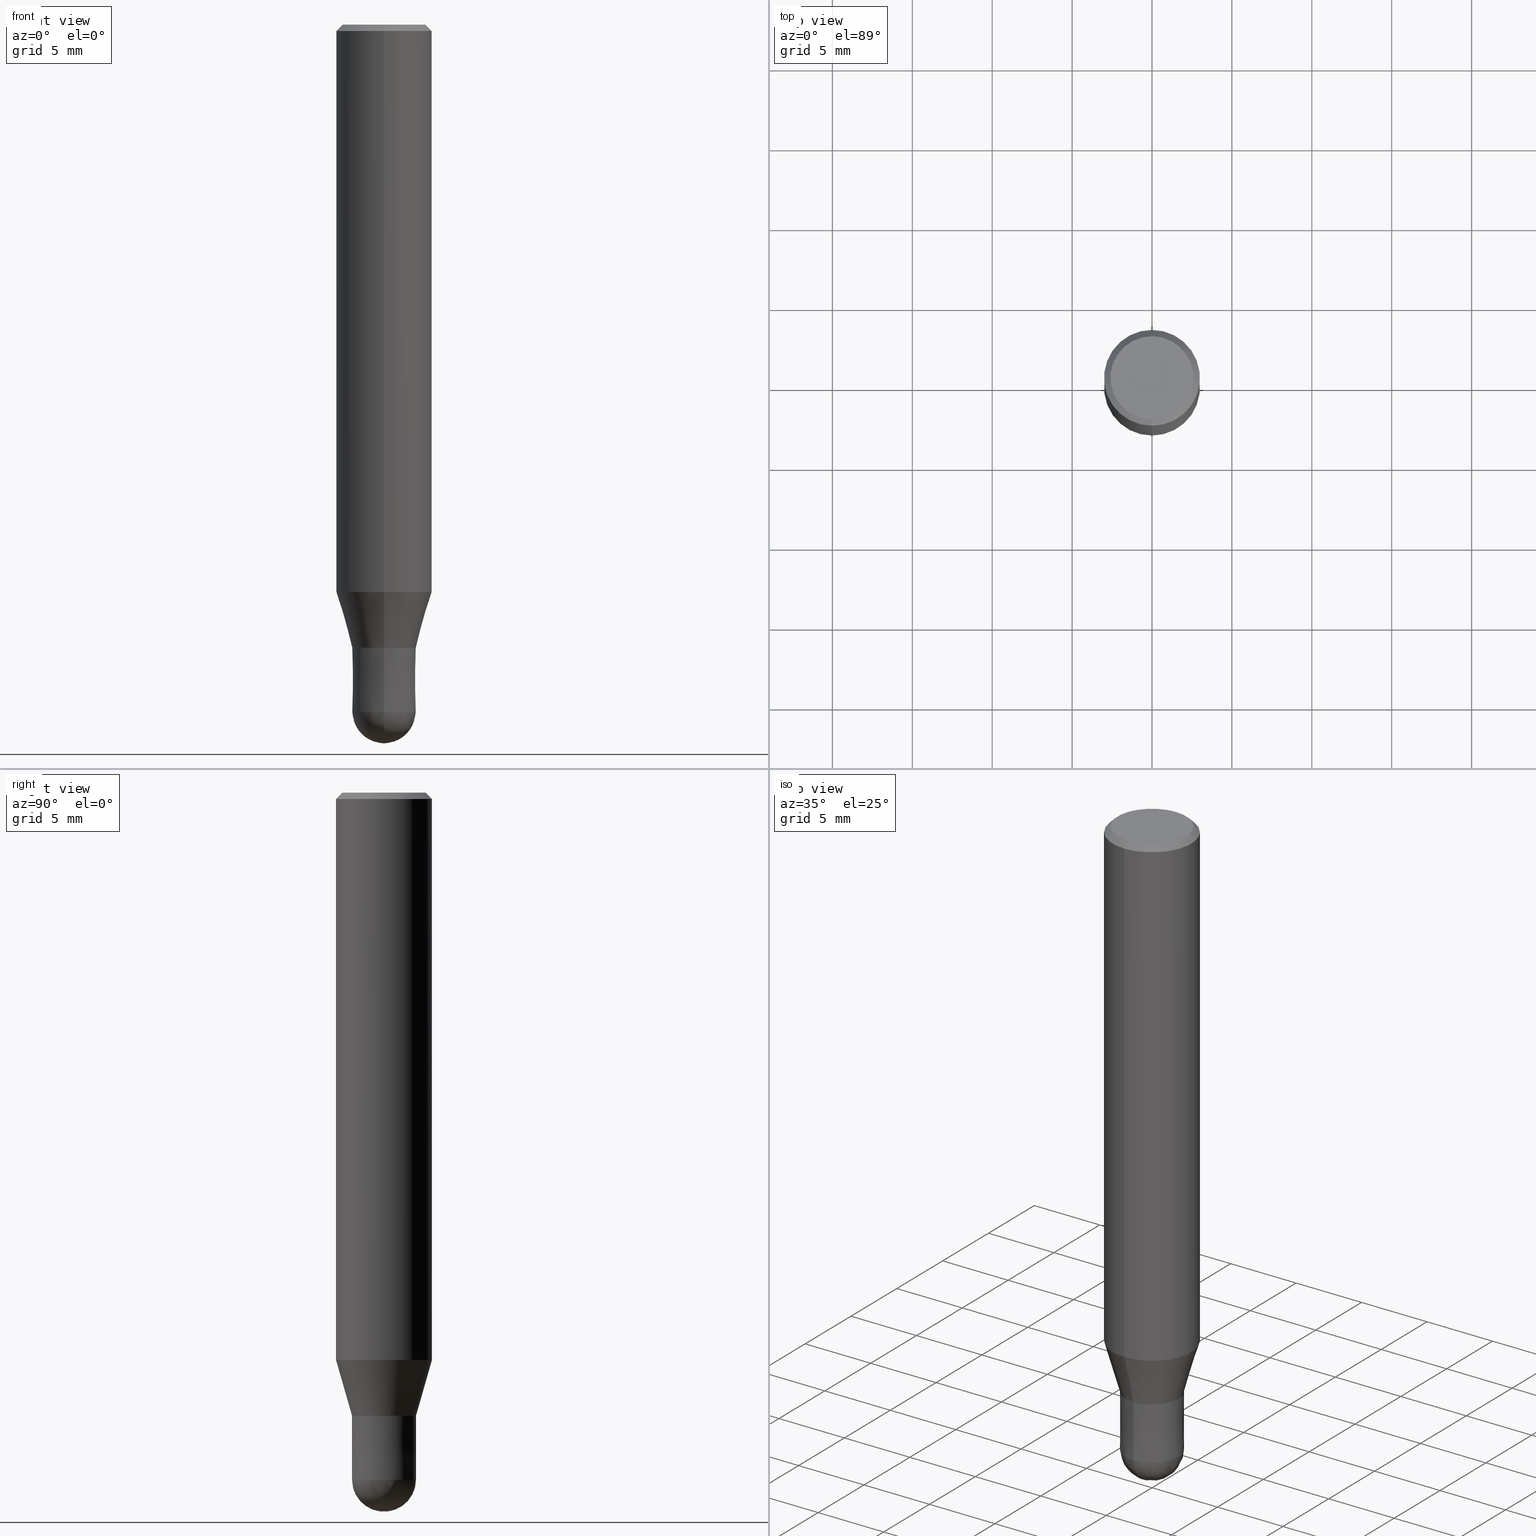
[diagram: canonical four-view strip — front | top / right | iso, engineering-drawing reading convention]
A machine part, canonical four-view strip (front | top / right | iso — engineering-drawing reading convention). The complete STEP part file that produces these views, byte-faithful:
ISO-10303-21;
HEADER;
FILE_DESCRIPTION(('no description'),'unknown implementation level');
FILE_NAME('HFB4040-0600S-Huellk.stp','  ',('CIMSOURCE GmbH'),('CADClick - KiM GmbH - www.kimweb.de'),'unknown preprocess','ACIS','unknown authorization');
FILE_SCHEMA(('automotive_design'));
ENDSEC;
DATA;
#1=MECHANICAL_DESIGN_GEOMETRIC_PRESENTATION_REPRESENTATION(' ',(#14,#15,#16,#17,#18,#19,#20,#21,#22,#23,#24,#25,#26,#27,#28,#29,#30,#31,#32,#33,#34,#35,#36,#37,#38,#39,#40,#41,#42,#43,#44,#45,#46,#47,#48,#49,#50,#51,#52,#53,#54,#55,#56,#57,#58,#59,#60,#61,#62,#63,#64,#65,#66),#10);
#2=PRODUCT_DEFINITION_CONTEXT('',#67,'design');
#3=APPLICATION_PROTOCOL_DEFINITION('INTERNATIONAL STANDARD','automotive_design',1994,#67);
#4=PRODUCT_CATEGORY_RELATIONSHIP('NONE','NONE',#68,#69);
#5=SHAPE_DEFINITION_REPRESENTATION(#70,#71);
#6=PRODUCT_DEFINITION_CONTEXT('',#72,'design');
#7=APPLICATION_PROTOCOL_DEFINITION('INTERNATIONAL STANDARD','automotive_design',1994,#72);
#8=PRODUCT_CATEGORY_RELATIONSHIP('NONE','NONE',#73,#74);
#9=SHAPE_DEFINITION_REPRESENTATION(#75,#76);
#10= (GEOMETRIC_REPRESENTATION_CONTEXT(3)GLOBAL_UNCERTAINTY_ASSIGNED_CONTEXT((#79))GLOBAL_UNIT_ASSIGNED_CONTEXT((#81,#82,#83))REPRESENTATION_CONTEXT('NONE','WORKSPACE'));
#14=STYLED_ITEM('',(#85),#86);
#15=STYLED_ITEM('',(#87),#88);
#16=STYLED_ITEM('',(#89),#90);
#17=STYLED_ITEM('',(#91),#92);
#18=STYLED_ITEM('',(#93),#94);
#19=STYLED_ITEM('',(#95),#96);
#20=STYLED_ITEM('',(#97),#98);
#21=STYLED_ITEM('',(#99),#100);
#22=STYLED_ITEM('',(#101),#102);
#23=STYLED_ITEM('',(#103),#104);
#24=STYLED_ITEM('',(#105),#106);
#25=STYLED_ITEM('',(#107),#108);
#26=STYLED_ITEM('',(#109),#110);
#27=STYLED_ITEM('',(#111),#112);
#28=STYLED_ITEM('',(#113),#114);
#29=STYLED_ITEM('',(#115),#116);
#30=STYLED_ITEM('',(#117),#118);
#31=STYLED_ITEM('',(#119),#120);
#32=STYLED_ITEM('',(#121),#122);
#33=STYLED_ITEM('',(#123),#124);
#34=STYLED_ITEM('',(#125),#126);
#35=STYLED_ITEM('',(#127),#128);
#36=STYLED_ITEM('',(#129),#130);
#37=STYLED_ITEM('',(#131),#132);
#38=STYLED_ITEM('',(#133),#134);
#39=STYLED_ITEM('',(#135),#136);
#40=STYLED_ITEM('',(#137),#138);
#41=STYLED_ITEM('',(#139),#140);
#42=STYLED_ITEM('',(#141),#142);
#43=STYLED_ITEM('',(#143),#144);
#44=STYLED_ITEM('',(#145),#146);
#45=STYLED_ITEM('',(#147),#148);
#46=STYLED_ITEM('',(#149),#150);
#47=STYLED_ITEM('',(#151),#152);
#48=STYLED_ITEM('',(#153),#154);
#49=STYLED_ITEM('',(#155),#156);
#50=STYLED_ITEM('',(#157),#158);
#51=STYLED_ITEM('',(#159),#160);
#52=STYLED_ITEM('',(#161),#162);
#53=STYLED_ITEM('',(#163),#164);
#54=STYLED_ITEM('',(#165),#166);
#55=STYLED_ITEM('',(#167),#168);
#56=STYLED_ITEM('',(#169),#170);
#57=STYLED_ITEM('',(#171),#172);
#58=STYLED_ITEM('',(#173),#174);
#59=STYLED_ITEM('',(#175),#176);
#60=STYLED_ITEM('',(#177),#178);
#61=STYLED_ITEM('',(#179),#180);
#62=STYLED_ITEM('',(#181),#182);
#63=STYLED_ITEM('',(#183),#184);
#64=STYLED_ITEM('',(#185),#186);
#65=STYLED_ITEM('',(#187),#188);
#66=STYLED_ITEM('',(#189),#190);
#67=APPLICATION_CONTEXT(' ');
#68=PRODUCT_CATEGORY('part','NONE');
#69=PRODUCT_RELATED_PRODUCT_CATEGORY('detail',' ',(#191));
#70=PRODUCT_DEFINITION_SHAPE('NONE','NONE',#192);
#71=ADVANCED_BREP_SHAPE_REPRESENTATION('1',(#98,#193),#10);
#72=APPLICATION_CONTEXT(' ');
#73=PRODUCT_CATEGORY('part','NONE');
#74=PRODUCT_RELATED_PRODUCT_CATEGORY('detail',' ',(#194));
#75=PRODUCT_DEFINITION_SHAPE('NONE','NONE',#195);
#76=ADVANCED_BREP_SHAPE_REPRESENTATION('2',(#188,#196),#10);
#79=UNCERTAINTY_MEASURE_WITH_UNIT(LENGTH_MEASURE(1.0E-006),#81,'','');
#81= (CONVERSION_BASED_UNIT('MILLIMETRE',#199)LENGTH_UNIT()NAMED_UNIT(#202));
#82= (NAMED_UNIT(#204)PLANE_ANGLE_UNIT()SI_UNIT($,.RADIAN.));
#83= (NAMED_UNIT(#204)SOLID_ANGLE_UNIT()SI_UNIT($,.STERADIAN.));
#85=PRESENTATION_STYLE_ASSIGNMENT((#210));
#86=ADVANCED_FACE('',(#211),#212,.T.);
#87=PRESENTATION_STYLE_ASSIGNMENT((#213));
#88=EDGE_CURVE('',#180,#102,#214,.T.);
#89=PRESENTATION_STYLE_ASSIGNMENT((#215));
#90=EDGE_CURVE('',#142,#154,#216,.T.);
#91=PRESENTATION_STYLE_ASSIGNMENT((#217));
#92=ADVANCED_FACE('',(#218),#219,.T.);
#93=PRESENTATION_STYLE_ASSIGNMENT((#220));
#94=EDGE_CURVE('',#142,#162,#221,.T.);
#95=PRESENTATION_STYLE_ASSIGNMENT((#222));
#96=ADVANCED_FACE('',(#223),#224,.T.);
#97=PRESENTATION_STYLE_ASSIGNMENT((#225));
#98=MANIFOLD_SOLID_BREP('1',#226);
#99=PRESENTATION_STYLE_ASSIGNMENT((#227));
#100=VERTEX_POINT('',#228);
#101=PRESENTATION_STYLE_ASSIGNMENT((#229));
#102=VERTEX_POINT('',#230);
#103=PRESENTATION_STYLE_ASSIGNMENT((#231));
#104=ADVANCED_FACE('',(#232),#233,.T.);
#105=PRESENTATION_STYLE_ASSIGNMENT((#234));
#106=EDGE_CURVE('',#156,#174,#235,.T.);
#107=PRESENTATION_STYLE_ASSIGNMENT((#236));
#108=EDGE_CURVE('',#126,#162,#237,.T.);
#109=PRESENTATION_STYLE_ASSIGNMENT((#238));
#110=EDGE_CURVE('',#100,#156,#239,.T.);
#111=PRESENTATION_STYLE_ASSIGNMENT((#240));
#112=ADVANCED_FACE('',(#241),#242,.T.);
#113=PRESENTATION_STYLE_ASSIGNMENT((#243));
#114=EDGE_CURVE('',#158,#170,#244,.T.);
#115=PRESENTATION_STYLE_ASSIGNMENT((#245));
#116=EDGE_CURVE('',#158,#170,#246,.T.);
#117=PRESENTATION_STYLE_ASSIGNMENT((#247));
#118=EDGE_CURVE('',#168,#100,#248,.T.);
#119=PRESENTATION_STYLE_ASSIGNMENT((#249));
#120=EDGE_CURVE('',#160,#182,#250,.T.);
#121=PRESENTATION_STYLE_ASSIGNMENT((#251));
#122=EDGE_CURVE('',#180,#168,#252,.T.);
#123=PRESENTATION_STYLE_ASSIGNMENT((#253));
#124=EDGE_CURVE('',#182,#160,#254,.T.);
#125=PRESENTATION_STYLE_ASSIGNMENT((#255));
#126=VERTEX_POINT('',#256);
#127=PRESENTATION_STYLE_ASSIGNMENT((#257));
#128=EDGE_CURVE('',#160,#170,#258,.T.);
#129=PRESENTATION_STYLE_ASSIGNMENT((#259));
#130=EDGE_CURVE('',#162,#126,#260,.T.);
#131=PRESENTATION_STYLE_ASSIGNMENT((#261));
#132=EDGE_CURVE('',#174,#168,#262,.T.);
#133=PRESENTATION_STYLE_ASSIGNMENT((#263));
#134=ADVANCED_FACE('',(#264),#265,.T.);
#135=PRESENTATION_STYLE_ASSIGNMENT((#266));
#136=EDGE_CURVE('',#102,#180,#267,.T.);
#137=PRESENTATION_STYLE_ASSIGNMENT((#268));
#138=EDGE_CURVE('',#170,#158,#269,.T.);
#139=PRESENTATION_STYLE_ASSIGNMENT((#270));
#140=ADVANCED_FACE('',(#271,#272),#273,.T.);
#141=PRESENTATION_STYLE_ASSIGNMENT((#274));
#142=VERTEX_POINT('',#275);
#143=PRESENTATION_STYLE_ASSIGNMENT((#276));
#144=EDGE_CURVE('',#154,#142,#277,.T.);
#145=PRESENTATION_STYLE_ASSIGNMENT((#278));
#146=ADVANCED_FACE('',(#279),#280,.T.);
#147=PRESENTATION_STYLE_ASSIGNMENT((#281));
#148=EDGE_CURVE('',#168,#174,#282,.T.);
#149=PRESENTATION_STYLE_ASSIGNMENT((#283));
#150=ADVANCED_FACE('',(#284),#285,.T.);
#151=PRESENTATION_STYLE_ASSIGNMENT((#286));
#152=ADVANCED_FACE('',(#287),#288,.T.);
#153=PRESENTATION_STYLE_ASSIGNMENT((#289));
#154=VERTEX_POINT('',#290);
#155=PRESENTATION_STYLE_ASSIGNMENT((#291));
#156=VERTEX_POINT('',#292);
#157=PRESENTATION_STYLE_ASSIGNMENT((#293));
#158=VERTEX_POINT('',#294);
#159=PRESENTATION_STYLE_ASSIGNMENT((#295));
#160=VERTEX_POINT('',#296);
#161=PRESENTATION_STYLE_ASSIGNMENT((#297));
#162=VERTEX_POINT('',#298);
#163=PRESENTATION_STYLE_ASSIGNMENT((#299));
#164=EDGE_CURVE('',#156,#100,#300,.T.);
#165=PRESENTATION_STYLE_ASSIGNMENT((#301));
#166=EDGE_CURVE('',#158,#182,#302,.T.);
#167=PRESENTATION_STYLE_ASSIGNMENT((#303));
#168=VERTEX_POINT('',#304);
#169=PRESENTATION_STYLE_ASSIGNMENT((#305));
#170=VERTEX_POINT('',#306);
#171=PRESENTATION_STYLE_ASSIGNMENT((#307));
#172=ADVANCED_FACE('',(#308),#309,.T.);
#173=PRESENTATION_STYLE_ASSIGNMENT((#310));
#174=VERTEX_POINT('',#311);
#175=PRESENTATION_STYLE_ASSIGNMENT((#312));
#176=ADVANCED_FACE('',(#313),#314,.T.);
#177=PRESENTATION_STYLE_ASSIGNMENT((#315));
#178=ADVANCED_FACE('',(#316),#317,.T.);
#179=PRESENTATION_STYLE_ASSIGNMENT((#318));
#180=VERTEX_POINT('',#319);
#181=PRESENTATION_STYLE_ASSIGNMENT((#320));
#182=VERTEX_POINT('',#321);
#183=PRESENTATION_STYLE_ASSIGNMENT((#322));
#184=EDGE_CURVE('',#126,#154,#323,.T.);
#185=PRESENTATION_STYLE_ASSIGNMENT((#324));
#186=ADVANCED_FACE('',(#325),#326,.T.);
#187=PRESENTATION_STYLE_ASSIGNMENT((#327));
#188=MANIFOLD_SOLID_BREP('2',#328);
#189=PRESENTATION_STYLE_ASSIGNMENT((#329));
#190=EDGE_CURVE('',#174,#102,#330,.T.);
#191=PRODUCT('1','1','PART-1-DESC',(#331));
#192=PRODUCT_DEFINITION('NONE','NONE',#332,#2);
#193=AXIS2_PLACEMENT_3D('',#333,#334,#335);
#194=PRODUCT('2','2','PART-2-DESC',(#336));
#195=PRODUCT_DEFINITION('NONE','NONE',#337,#6);
#196=AXIS2_PLACEMENT_3D('',#338,#339,#340);
#199=LENGTH_MEASURE_WITH_UNIT(LENGTH_MEASURE(1.0),#341);
#202=DIMENSIONAL_EXPONENTS(1.0,0.0,0.0,0.0,0.0,0.0,0.0);
#204=DIMENSIONAL_EXPONENTS(0.0,0.0,0.0,0.0,0.0,0.0,0.0);
#210=SURFACE_STYLE_USAGE(.BOTH.,#342);
#211=FACE_OUTER_BOUND('',#343,.T.);
#212=CONICAL_SURFACE('',#344,2.49995,0.279284171542493);
#213=CURVE_STYLE('',#345,POSITIVE_LENGTH_MEASURE(1.0E-006),#346);
#214=CIRCLE('',#347,2.6);
#215=CURVE_STYLE('',#348,POSITIVE_LENGTH_MEASURE(1.0E-006),#349);
#216=CIRCLE('',#350,2.99995);
#217=SURFACE_STYLE_USAGE(.BOTH.,#351);
#218=FACE_OUTER_BOUND('',#352,.T.);
#219=CONICAL_SURFACE('',#353,1.99995,2.49999999947889E-005);
#220=CURVE_STYLE('',#354,POSITIVE_LENGTH_MEASURE(1.0E-006),#355);
#221=LINE('',#356,#357);
#222=SURFACE_STYLE_USAGE(.BOTH.,#358);
#223=FACE_OUTER_BOUND('',#359,.T.);
#224=CONICAL_SURFACE('',#360,1.99995,2.49999999947889E-005);
#225=SURFACE_STYLE_USAGE(.BOTH.,#361);
#226=CLOSED_SHELL('',(#86,#176,#186,#140,#152,#178,#112,#172,#134));
#227=POINT_STYLE(' ',#362,POSITIVE_LENGTH_MEASURE(1.0E-006),#363);
#228=CARTESIAN_POINT('',(0.0,3.0,-35.513));
#229=POINT_STYLE(' ',#364,POSITIVE_LENGTH_MEASURE(1.0E-006),#365);
#230=CARTESIAN_POINT('',(3.18397651993818E-016,-2.6,0.0));
#231=SURFACE_STYLE_USAGE(.BOTH.,#366);
#232=FACE_OUTER_BOUND('',#367,.T.);
#233=SPHERICAL_SURFACE('',#368,2.0);
#234=CURVE_STYLE('',#369,POSITIVE_LENGTH_MEASURE(1.0E-006),#370);
#235=LINE('',#371,#372);
#236=CURVE_STYLE('',#373,POSITIVE_LENGTH_MEASURE(1.0E-006),#374);
#237=CIRCLE('',#375,1.99995);
#238=CURVE_STYLE('',#376,POSITIVE_LENGTH_MEASURE(1.0E-006),#377);
#239=CIRCLE('',#378,3.0);
#240=SURFACE_STYLE_USAGE(.BOTH.,#379);
#241=FACE_OUTER_BOUND('',#380,.T.);
#242=CYLINDRICAL_SURFACE('',#381,3.0);
#243=CURVE_STYLE('',#382,POSITIVE_LENGTH_MEASURE(1.0E-006),#383);
#244=CIRCLE('',#384,2.0);
#245=CURVE_STYLE('',#385,POSITIVE_LENGTH_MEASURE(1.0E-006),#386);
#246=CIRCLE('',#387,2.0);
#247=CURVE_STYLE('',#388,POSITIVE_LENGTH_MEASURE(1.0E-006),#389);
#248=LINE('',#390,#391);
#249=CURVE_STYLE('',#392,POSITIVE_LENGTH_MEASURE(1.0E-006),#393);
#250=CIRCLE('',#394,1.9999);
#251=CURVE_STYLE('',#395,POSITIVE_LENGTH_MEASURE(1.0E-006),#396);
#252=LINE('',#397,#398);
#253=CURVE_STYLE('',#399,POSITIVE_LENGTH_MEASURE(1.0E-006),#400);
#254=CIRCLE('',#401,1.9999);
#255=POINT_STYLE(' ',#402,POSITIVE_LENGTH_MEASURE(1.0E-006),#403);
#256=CARTESIAN_POINT('',(2.44915147732706E-016,-1.99995,-39.0));
#257=CURVE_STYLE('',#404,POSITIVE_LENGTH_MEASURE(1.0E-006),#405);
#258=LINE('',#406,#407);
#259=CURVE_STYLE('',#408,POSITIVE_LENGTH_MEASURE(1.0E-006),#409);
#260=CIRCLE('',#410,1.99995);
#261=CURVE_STYLE('',#411,POSITIVE_LENGTH_MEASURE(1.0E-006),#412);
#262=CIRCLE('',#413,3.0);
#263=SURFACE_STYLE_USAGE(.BOTH.,#414);
#264=FACE_OUTER_BOUND('',#415,.T.);
#265=PLANE('',#416);
#266=CURVE_STYLE('',#417,POSITIVE_LENGTH_MEASURE(1.0E-006),#418);
#267=CIRCLE('',#419,2.6);
#268=CURVE_STYLE('',#420,POSITIVE_LENGTH_MEASURE(1.0E-006),#421);
#269=CIRCLE('',#422,2.0);
#270=SURFACE_STYLE_USAGE(.BOTH.,#423);
#271=FACE_OUTER_BOUND('',#424,.T.);
#272=FACE_BOUND('',#425,.T.);
#273=PLANE('',#426);
#274=POINT_STYLE(' ',#427,POSITIVE_LENGTH_MEASURE(1.0E-006),#428);
#275=CARTESIAN_POINT('',(0.0,2.99995,-35.513));
#276=CURVE_STYLE('',#429,POSITIVE_LENGTH_MEASURE(1.0E-006),#430);
#277=CIRCLE('',#431,2.99995);
#278=SURFACE_STYLE_USAGE(.BOTH.,#432);
#279=FACE_OUTER_BOUND('',#433,.T.);
#280=PLANE('',#434);
#281=CURVE_STYLE('',#435,POSITIVE_LENGTH_MEASURE(1.0E-006),#436);
#282=CIRCLE('',#437,3.0);
#283=SURFACE_STYLE_USAGE(.BOTH.,#438);
#284=FACE_OUTER_BOUND('',#439,.T.);
#285=SPHERICAL_SURFACE('',#440,2.0);
#286=SURFACE_STYLE_USAGE(.BOTH.,#441);
#287=FACE_OUTER_BOUND('',#442,.T.);
#288=PLANE('',#443);
#289=POINT_STYLE(' ',#444,POSITIVE_LENGTH_MEASURE(1.0E-006),#445);
#290=CARTESIAN_POINT('',(3.67375783114944E-016,-2.99995,-35.513));
#291=POINT_STYLE(' ',#446,POSITIVE_LENGTH_MEASURE(1.0E-006),#447);
#292=CARTESIAN_POINT('',(3.67381906146713E-016,-3.0,-35.513));
#293=POINT_STYLE(' ',#448,POSITIVE_LENGTH_MEASURE(1.0E-006),#449);
#294=CARTESIAN_POINT('',(2.44921270764475E-016,-2.0,-43.0));
#295=POINT_STYLE(' ',#450,POSITIVE_LENGTH_MEASURE(1.0E-006),#451);
#296=CARTESIAN_POINT('',(0.0,1.9999,-39.0));
#297=POINT_STYLE(' ',#452,POSITIVE_LENGTH_MEASURE(1.0E-006),#453);
#298=CARTESIAN_POINT('',(0.0,1.99995,-39.0));
#299=CURVE_STYLE('',#454,POSITIVE_LENGTH_MEASURE(1.0E-006),#455);
#300=CIRCLE('',#456,3.0);
#301=CURVE_STYLE('',#457,POSITIVE_LENGTH_MEASURE(1.0E-006),#458);
#302=LINE('',#459,#460);
#303=POINT_STYLE(' ',#461,POSITIVE_LENGTH_MEASURE(1.0E-006),#462);
#304=CARTESIAN_POINT('',(0.0,3.0,-0.399999999999999));
#305=POINT_STYLE(' ',#463,POSITIVE_LENGTH_MEASURE(1.0E-006),#464);
#306=CARTESIAN_POINT('',(0.0,2.0,-43.0));
#307=SURFACE_STYLE_USAGE(.BOTH.,#465);
#308=FACE_OUTER_BOUND('',#466,.T.);
#309=CONICAL_SURFACE('',#467,2.49995,0.279284171542493);
#310=POINT_STYLE(' ',#468,POSITIVE_LENGTH_MEASURE(1.0E-006),#469);
#311=CARTESIAN_POINT('',(3.67381906146713E-016,-3.0,-0.399999999999999));
#312=SURFACE_STYLE_USAGE(.BOTH.,#470);
#313=FACE_OUTER_BOUND('',#471,.T.);
#314=CYLINDRICAL_SURFACE('',#472,3.0);
#315=SURFACE_STYLE_USAGE(.BOTH.,#473);
#316=FACE_OUTER_BOUND('',#474,.T.);
#317=CONICAL_SURFACE('',#475,2.8,0.78539816339745);
#318=POINT_STYLE(' ',#476,POSITIVE_LENGTH_MEASURE(1.0E-006),#477);
#319=CARTESIAN_POINT('',(0.0,2.6,0.0));
#320=POINT_STYLE(' ',#478,POSITIVE_LENGTH_MEASURE(1.0E-006),#479);
#321=CARTESIAN_POINT('',(2.44909024700937E-016,-1.9999,-39.0));
#322=CURVE_STYLE('',#480,POSITIVE_LENGTH_MEASURE(1.0E-006),#481);
#323=LINE('',#482,#483);
#324=SURFACE_STYLE_USAGE(.BOTH.,#484);
#325=FACE_OUTER_BOUND('',#485,.T.);
#326=CONICAL_SURFACE('',#486,2.8,0.78539816339745);
#327=SURFACE_STYLE_USAGE(.BOTH.,#487);
#328=CLOSED_SHELL('',(#104,#92,#146,#96,#150));
#329=CURVE_STYLE('',#488,POSITIVE_LENGTH_MEASURE(1.0E-006),#489);
#330=LINE('',#490,#491);
#331=PRODUCT_CONTEXT('',#67,'mechanical');
#332=PRODUCT_DEFINITION_FORMATION_WITH_SPECIFIED_SOURCE(' ','NONE',#191,.NOT_KNOWN.);
#333=CARTESIAN_POINT('',(0.0,0.0,0.0));
#334=DIRECTION('',(0.0,0.0,1.0));
#335=DIRECTION('',(1.0,0.0,0.0));
#336=PRODUCT_CONTEXT('',#72,'mechanical');
#337=PRODUCT_DEFINITION_FORMATION_WITH_SPECIFIED_SOURCE(' ','NONE',#194,.NOT_KNOWN.);
#338=CARTESIAN_POINT('',(0.0,0.0,0.0));
#339=DIRECTION('',(0.0,0.0,1.0));
#340=DIRECTION('',(1.0,0.0,0.0));
#341= (NAMED_UNIT(#202)LENGTH_UNIT()SI_UNIT(.MILLI.,.METRE.));
#342=SURFACE_SIDE_STYLE('',(#493));
#343=EDGE_LOOP('',(#494,#495,#496,#497));
#344=AXIS2_PLACEMENT_3D('',#498,#499,#500);
#345=DRAUGHTING_PRE_DEFINED_CURVE_FONT('continuous');
#346=COLOUR_RGB('',0.498039215803146,0.498039215803146,0.498039215803146);
#347=AXIS2_PLACEMENT_3D('',#501,#502,#503);
#348=DRAUGHTING_PRE_DEFINED_CURVE_FONT('continuous');
#349=COLOUR_RGB('',0.498039215803146,0.498039215803146,0.498039215803146);
#350=AXIS2_PLACEMENT_3D('',#504,#505,#506);
#351=SURFACE_SIDE_STYLE('',(#507));
#352=EDGE_LOOP('',(#508,#509,#510,#511));
#353=AXIS2_PLACEMENT_3D('',#512,#513,#514);
#354=DRAUGHTING_PRE_DEFINED_CURVE_FONT('continuous');
#355=COLOUR_RGB('',0.498039215803146,0.498039215803146,0.498039215803146);
#356=CARTESIAN_POINT('',(-3.06145465423825E-016,2.49995,-37.2565));
#357=VECTOR('',#515,1.0);
#358=SURFACE_SIDE_STYLE('',(#516));
#359=EDGE_LOOP('',(#517,#518,#519,#520));
#360=AXIS2_PLACEMENT_3D('',#521,#522,#523);
#361=SURFACE_SIDE_STYLE('',(#524));
#362=PRE_DEFINED_MARKER('');
#363=COLOUR_RGB('',0.498039215803146,0.498039215803146,0.498039215803146);
#364=PRE_DEFINED_MARKER('');
#365=COLOUR_RGB('',0.498039215803146,0.498039215803146,0.498039215803146);
#366=SURFACE_SIDE_STYLE('',(#525));
#367=EDGE_LOOP('',(#526,#527));
#368=AXIS2_PLACEMENT_3D('',#528,#529,#530);
#369=DRAUGHTING_PRE_DEFINED_CURVE_FONT('continuous');
#370=COLOUR_RGB('',0.498039215803146,0.498039215803146,0.498039215803146);
#371=CARTESIAN_POINT('',(3.67381906146713E-016,-3.0,-17.9565));
#372=VECTOR('',#531,1.0);
#373=DRAUGHTING_PRE_DEFINED_CURVE_FONT('continuous');
#374=COLOUR_RGB('',0.498039215803146,0.498039215803146,0.498039215803146);
#375=AXIS2_PLACEMENT_3D('',#532,#533,#534);
#376=DRAUGHTING_PRE_DEFINED_CURVE_FONT('continuous');
#377=COLOUR_RGB('',0.498039215803146,0.498039215803146,0.498039215803146);
#378=AXIS2_PLACEMENT_3D('',#535,#536,#537);
#379=SURFACE_SIDE_STYLE('',(#538));
#380=EDGE_LOOP('',(#539,#540,#541,#542));
#381=AXIS2_PLACEMENT_3D('',#543,#544,#545);
#382=DRAUGHTING_PRE_DEFINED_CURVE_FONT('continuous');
#383=COLOUR_RGB('',0.800000011920929,0.800000011920929,0.800000011920929);
#384=AXIS2_PLACEMENT_3D('',#546,#547,#548);
#385=DRAUGHTING_PRE_DEFINED_CURVE_FONT('continuous');
#386=COLOUR_RGB('',0.800000011920929,0.800000011920929,0.800000011920929);
#387=AXIS2_PLACEMENT_3D('',#549,#550,#551);
#388=DRAUGHTING_PRE_DEFINED_CURVE_FONT('continuous');
#389=COLOUR_RGB('',0.498039215803146,0.498039215803146,0.498039215803146);
#390=CARTESIAN_POINT('',(-3.67381906146713E-016,3.0,-17.9565));
#391=VECTOR('',#552,1.0);
#392=DRAUGHTING_PRE_DEFINED_CURVE_FONT('continuous');
#393=COLOUR_RGB('',0.800000011920929,0.800000011920929,0.800000011920929);
#394=AXIS2_PLACEMENT_3D('',#553,#554,#555);
#395=DRAUGHTING_PRE_DEFINED_CURVE_FONT('continuous');
#396=COLOUR_RGB('',0.498039215803146,0.498039215803146,0.498039215803146);
#397=CARTESIAN_POINT('',(-3.42889779070266E-016,2.8,-0.200000000000003));
#398=VECTOR('',#556,1.0);
#399=DRAUGHTING_PRE_DEFINED_CURVE_FONT('continuous');
#400=COLOUR_RGB('',0.800000011920929,0.800000011920929,0.800000011920929);
#401=AXIS2_PLACEMENT_3D('',#557,#558,#559);
#402=PRE_DEFINED_MARKER('');
#403=COLOUR_RGB('',0.498039215803146,0.498039215803146,0.498039215803146);
#404=DRAUGHTING_PRE_DEFINED_CURVE_FONT('continuous');
#405=COLOUR_RGB('',0.800000011920929,0.800000011920929,0.800000011920929);
#406=CARTESIAN_POINT('',(-2.44915147732706E-016,1.99995,-41.0));
#407=VECTOR('',#560,1.0);
#408=DRAUGHTING_PRE_DEFINED_CURVE_FONT('continuous');
#409=COLOUR_RGB('',0.498039215803146,0.498039215803146,0.498039215803146);
#410=AXIS2_PLACEMENT_3D('',#561,#562,#563);
#411=DRAUGHTING_PRE_DEFINED_CURVE_FONT('continuous');
#412=COLOUR_RGB('',0.498039215803146,0.498039215803146,0.498039215803146);
#413=AXIS2_PLACEMENT_3D('',#564,#565,#566);
#414=SURFACE_SIDE_STYLE('',(#567));
#415=EDGE_LOOP('',(#568,#569));
#416=AXIS2_PLACEMENT_3D('',#570,#571,#572);
#417=DRAUGHTING_PRE_DEFINED_CURVE_FONT('continuous');
#418=COLOUR_RGB('',0.498039215803146,0.498039215803146,0.498039215803146);
#419=AXIS2_PLACEMENT_3D('',#573,#574,#575);
#420=DRAUGHTING_PRE_DEFINED_CURVE_FONT('continuous');
#421=COLOUR_RGB('',0.800000011920929,0.800000011920929,0.800000011920929);
#422=AXIS2_PLACEMENT_3D('',#576,#577,#578);
#423=SURFACE_SIDE_STYLE('',(#579));
#424=EDGE_LOOP('',(#580,#581));
#425=EDGE_LOOP('',(#582,#583));
#426=AXIS2_PLACEMENT_3D('',#584,#585,#586);
#427=PRE_DEFINED_MARKER('');
#428=COLOUR_RGB('',0.498039215803146,0.498039215803146,0.498039215803146);
#429=DRAUGHTING_PRE_DEFINED_CURVE_FONT('continuous');
#430=COLOUR_RGB('',0.498039215803146,0.498039215803146,0.498039215803146);
#431=AXIS2_PLACEMENT_3D('',#587,#588,#589);
#432=SURFACE_SIDE_STYLE('',(#590));
#433=EDGE_LOOP('',(#591,#592));
#434=AXIS2_PLACEMENT_3D('',#593,#594,#595);
#435=DRAUGHTING_PRE_DEFINED_CURVE_FONT('continuous');
#436=COLOUR_RGB('',0.498039215803146,0.498039215803146,0.498039215803146);
#437=AXIS2_PLACEMENT_3D('',#596,#597,#598);
#438=SURFACE_SIDE_STYLE('',(#599));
#439=EDGE_LOOP('',(#600,#601));
#440=AXIS2_PLACEMENT_3D('',#602,#603,#604);
#441=SURFACE_SIDE_STYLE('',(#605));
#442=EDGE_LOOP('',(#606,#607));
#443=AXIS2_PLACEMENT_3D('',#608,#609,#610);
#444=PRE_DEFINED_MARKER('');
#445=COLOUR_RGB('',0.498039215803146,0.498039215803146,0.498039215803146);
#446=PRE_DEFINED_MARKER('');
#447=COLOUR_RGB('',0.498039215803146,0.498039215803146,0.498039215803146);
#448=PRE_DEFINED_MARKER('');
#449=COLOUR_RGB('',0.800000011920929,0.800000011920929,0.800000011920929);
#450=PRE_DEFINED_MARKER('');
#451=COLOUR_RGB('',0.800000011920929,0.800000011920929,0.800000011920929);
#452=PRE_DEFINED_MARKER('');
#453=COLOUR_RGB('',0.498039215803146,0.498039215803146,0.498039215803146);
#454=DRAUGHTING_PRE_DEFINED_CURVE_FONT('continuous');
#455=COLOUR_RGB('',0.498039215803146,0.498039215803146,0.498039215803146);
#456=AXIS2_PLACEMENT_3D('',#611,#612,#613);
#457=DRAUGHTING_PRE_DEFINED_CURVE_FONT('continuous');
#458=COLOUR_RGB('',0.800000011920929,0.800000011920929,0.800000011920929);
#459=CARTESIAN_POINT('',(2.44915147732706E-016,-1.99995,-41.0));
#460=VECTOR('',#614,1.0);
#461=PRE_DEFINED_MARKER('');
#462=COLOUR_RGB('',0.498039215803146,0.498039215803146,0.498039215803146);
#463=PRE_DEFINED_MARKER('');
#464=COLOUR_RGB('',0.800000011920929,0.800000011920929,0.800000011920929);
#465=SURFACE_SIDE_STYLE('',(#615));
#466=EDGE_LOOP('',(#616,#617,#618,#619));
#467=AXIS2_PLACEMENT_3D('',#620,#621,#622);
#468=PRE_DEFINED_MARKER('');
#469=COLOUR_RGB('',0.498039215803146,0.498039215803146,0.498039215803146);
#470=SURFACE_SIDE_STYLE('',(#623));
#471=EDGE_LOOP('',(#624,#625,#626,#627));
#472=AXIS2_PLACEMENT_3D('',#628,#629,#630);
#473=SURFACE_SIDE_STYLE('',(#631));
#474=EDGE_LOOP('',(#632,#633,#634,#635));
#475=AXIS2_PLACEMENT_3D('',#636,#637,#638);
#476=PRE_DEFINED_MARKER('');
#477=COLOUR_RGB('',0.498039215803146,0.498039215803146,0.498039215803146);
#478=PRE_DEFINED_MARKER('');
#479=COLOUR_RGB('',0.800000011920929,0.800000011920929,0.800000011920929);
#480=DRAUGHTING_PRE_DEFINED_CURVE_FONT('continuous');
#481=COLOUR_RGB('',0.498039215803146,0.498039215803146,0.498039215803146);
#482=CARTESIAN_POINT('',(3.06145465423825E-016,-2.49995,-37.2565));
#483=VECTOR('',#639,1.0);
#484=SURFACE_SIDE_STYLE('',(#640));
#485=EDGE_LOOP('',(#641,#642,#643,#644));
#486=AXIS2_PLACEMENT_3D('',#645,#646,#647);
#487=SURFACE_SIDE_STYLE('',(#648));
#488=DRAUGHTING_PRE_DEFINED_CURVE_FONT('continuous');
#489=COLOUR_RGB('',0.498039215803146,0.498039215803146,0.498039215803146);
#490=CARTESIAN_POINT('',(3.42889779070266E-016,-2.8,-0.200000000000003));
#491=VECTOR('',#649,1.0);
#493=SURFACE_STYLE_FILL_AREA(#650);
#494=ORIENTED_EDGE('',*,*,#94,.F.);
#495=ORIENTED_EDGE('',*,*,#90,.T.);
#496=ORIENTED_EDGE('',*,*,#184,.F.);
#497=ORIENTED_EDGE('',*,*,#130,.F.);
#498=CARTESIAN_POINT('',(0.0,0.0,-37.2565));
#499=DIRECTION('',(-0.0,-0.0,1.0));
#500=DIRECTION('',(0.0,1.0,0.0));
#501=CARTESIAN_POINT('',(0.0,0.0,0.0));
#502=DIRECTION('',(0.0,0.0,-1.0));
#503=DIRECTION('',(0.0,1.0,0.0));
#504=CARTESIAN_POINT('',(0.0,0.0,-35.513));
#505=DIRECTION('',(0.0,0.0,-1.0));
#506=DIRECTION('',(0.0,1.0,0.0));
#507=SURFACE_STYLE_FILL_AREA(#651);
#508=ORIENTED_EDGE('',*,*,#128,.F.);
#509=ORIENTED_EDGE('',*,*,#120,.T.);
#510=ORIENTED_EDGE('',*,*,#166,.F.);
#511=ORIENTED_EDGE('',*,*,#138,.F.);
#512=CARTESIAN_POINT('',(0.0,0.0,-41.0));
#513=DIRECTION('',(0.0,-0.0,-1.0));
#514=DIRECTION('',(0.0,1.0,0.0));
#515=DIRECTION('',(3.3758432755158E-017,-0.275667626987133,-0.961253015304131));
#516=SURFACE_STYLE_FILL_AREA(#652);
#517=ORIENTED_EDGE('',*,*,#128,.T.);
#518=ORIENTED_EDGE('',*,*,#116,.F.);
#519=ORIENTED_EDGE('',*,*,#166,.T.);
#520=ORIENTED_EDGE('',*,*,#124,.T.);
#521=CARTESIAN_POINT('',(0.0,0.0,-41.0));
#522=DIRECTION('',(0.0,-0.0,-1.0));
#523=DIRECTION('',(0.0,1.0,0.0));
#524=SURFACE_STYLE_FILL_AREA(#653);
#525=SURFACE_STYLE_FILL_AREA(#654);
#526=ORIENTED_EDGE('',*,*,#114,.F.);
#527=ORIENTED_EDGE('',*,*,#116,.T.);
#528=CARTESIAN_POINT('',(0.0,0.0,-43.0));
#529=DIRECTION('',(0.0,1.0,0.0));
#530=DIRECTION('',(0.0,0.0,-1.0));
#531=DIRECTION('',(-0.0,-0.0,1.0));
#532=CARTESIAN_POINT('',(0.0,0.0,-39.0));
#533=DIRECTION('',(0.0,0.0,-1.0));
#534=DIRECTION('',(0.0,1.0,0.0));
#535=CARTESIAN_POINT('',(0.0,0.0,-35.513));
#536=DIRECTION('',(0.0,0.0,-1.0));
#537=DIRECTION('',(0.0,1.0,0.0));
#538=SURFACE_STYLE_FILL_AREA(#655);
#539=ORIENTED_EDGE('',*,*,#118,.T.);
#540=ORIENTED_EDGE('',*,*,#164,.F.);
#541=ORIENTED_EDGE('',*,*,#106,.T.);
#542=ORIENTED_EDGE('',*,*,#132,.T.);
#543=CARTESIAN_POINT('',(0.0,0.0,-17.9565));
#544=DIRECTION('',(-0.0,-0.0,1.0));
#545=DIRECTION('',(0.0,1.0,0.0));
#546=CARTESIAN_POINT('',(0.0,0.0,-43.0));
#547=DIRECTION('',(1.0,0.0,1.22460635382238E-016));
#548=DIRECTION('',(-1.22460635382238E-016,0.0,1.0));
#549=CARTESIAN_POINT('',(0.0,0.0,-43.0));
#550=DIRECTION('',(0.0,0.0,-1.0));
#551=DIRECTION('',(0.0,1.0,0.0));
#552=DIRECTION('',(0.0,0.0,-1.0));
#553=CARTESIAN_POINT('',(0.0,0.0,-39.0));
#554=DIRECTION('',(0.0,0.0,-1.0));
#555=DIRECTION('',(0.0,1.0,0.0));
#556=DIRECTION('',(-8.65927457071937E-017,0.707106781186549,-0.707106781186546));
#557=CARTESIAN_POINT('',(0.0,0.0,-39.0));
#558=DIRECTION('',(0.0,0.0,-1.0));
#559=DIRECTION('',(0.0,1.0,0.0));
#560=DIRECTION('',(-3.06151588359888E-021,2.49999999921848E-005,-0.9999999996875));
#561=CARTESIAN_POINT('',(0.0,0.0,-39.0));
#562=DIRECTION('',(0.0,0.0,-1.0));
#563=DIRECTION('',(0.0,1.0,0.0));
#564=CARTESIAN_POINT('',(0.0,0.0,-0.399999999999999));
#565=DIRECTION('',(0.0,0.0,-1.0));
#566=DIRECTION('',(0.0,1.0,0.0));
#567=SURFACE_STYLE_FILL_AREA(#656);
#568=ORIENTED_EDGE('',*,*,#130,.T.);
#569=ORIENTED_EDGE('',*,*,#108,.T.);
#570=CARTESIAN_POINT('',(0.0,0.999975,-39.0));
#571=DIRECTION('',(0.0,0.0,-1.0));
#572=DIRECTION('',(0.0,1.0,0.0));
#573=CARTESIAN_POINT('',(0.0,0.0,0.0));
#574=DIRECTION('',(0.0,0.0,-1.0));
#575=DIRECTION('',(0.0,1.0,0.0));
#576=CARTESIAN_POINT('',(0.0,0.0,-43.0));
#577=DIRECTION('',(0.0,0.0,-1.0));
#578=DIRECTION('',(0.0,1.0,0.0));
#579=SURFACE_STYLE_FILL_AREA(#657);
#580=ORIENTED_EDGE('',*,*,#110,.T.);
#581=ORIENTED_EDGE('',*,*,#164,.T.);
#582=ORIENTED_EDGE('',*,*,#90,.F.);
#583=ORIENTED_EDGE('',*,*,#144,.F.);
#584=CARTESIAN_POINT('',(0.0,1.5,-35.513));
#585=DIRECTION('',(0.0,0.0,-1.0));
#586=DIRECTION('',(0.0,1.0,0.0));
#587=CARTESIAN_POINT('',(0.0,0.0,-35.513));
#588=DIRECTION('',(0.0,0.0,-1.0));
#589=DIRECTION('',(0.0,1.0,0.0));
#590=SURFACE_STYLE_FILL_AREA(#658);
#591=ORIENTED_EDGE('',*,*,#120,.F.);
#592=ORIENTED_EDGE('',*,*,#124,.F.);
#593=CARTESIAN_POINT('',(0.0,0.99995,-39.0));
#594=DIRECTION('',(-0.0,0.0,1.0));
#595=DIRECTION('',(0.0,-1.0,0.0));
#596=CARTESIAN_POINT('',(0.0,0.0,-0.399999999999999));
#597=DIRECTION('',(0.0,0.0,-1.0));
#598=DIRECTION('',(0.0,1.0,0.0));
#599=SURFACE_STYLE_FILL_AREA(#659);
#600=ORIENTED_EDGE('',*,*,#114,.T.);
#601=ORIENTED_EDGE('',*,*,#138,.T.);
#602=CARTESIAN_POINT('',(0.0,0.0,-43.0));
#603=DIRECTION('',(0.0,1.0,0.0));
#604=DIRECTION('',(0.0,0.0,-1.0));
#605=SURFACE_STYLE_FILL_AREA(#660);
#606=ORIENTED_EDGE('',*,*,#88,.F.);
#607=ORIENTED_EDGE('',*,*,#136,.F.);
#608=CARTESIAN_POINT('',(0.0,1.3,0.0));
#609=DIRECTION('',(-0.0,0.0,1.0));
#610=DIRECTION('',(0.0,-1.0,0.0));
#611=CARTESIAN_POINT('',(0.0,0.0,-35.513));
#612=DIRECTION('',(0.0,0.0,-1.0));
#613=DIRECTION('',(0.0,1.0,0.0));
#614=DIRECTION('',(-3.06151588359888E-021,2.49999999921848E-005,0.9999999996875));
#615=SURFACE_STYLE_FILL_AREA(#661);
#616=ORIENTED_EDGE('',*,*,#94,.T.);
#617=ORIENTED_EDGE('',*,*,#108,.F.);
#618=ORIENTED_EDGE('',*,*,#184,.T.);
#619=ORIENTED_EDGE('',*,*,#144,.T.);
#620=CARTESIAN_POINT('',(0.0,0.0,-37.2565));
#621=DIRECTION('',(-0.0,-0.0,1.0));
#622=DIRECTION('',(0.0,1.0,0.0));
#623=SURFACE_STYLE_FILL_AREA(#662);
#624=ORIENTED_EDGE('',*,*,#118,.F.);
#625=ORIENTED_EDGE('',*,*,#148,.T.);
#626=ORIENTED_EDGE('',*,*,#106,.F.);
#627=ORIENTED_EDGE('',*,*,#110,.F.);
#628=CARTESIAN_POINT('',(0.0,0.0,-17.9565));
#629=DIRECTION('',(-0.0,-0.0,1.0));
#630=DIRECTION('',(0.0,1.0,0.0));
#631=SURFACE_STYLE_FILL_AREA(#663);
#632=ORIENTED_EDGE('',*,*,#122,.T.);
#633=ORIENTED_EDGE('',*,*,#132,.F.);
#634=ORIENTED_EDGE('',*,*,#190,.T.);
#635=ORIENTED_EDGE('',*,*,#136,.T.);
#636=CARTESIAN_POINT('',(0.0,0.0,-0.200000000000003));
#637=DIRECTION('',(0.0,-0.0,-1.0));
#638=DIRECTION('',(0.0,1.0,0.0));
#639=DIRECTION('',(3.3758432755158E-017,-0.275667626987133,0.961253015304131));
#640=SURFACE_STYLE_FILL_AREA(#664);
#641=ORIENTED_EDGE('',*,*,#122,.F.);
#642=ORIENTED_EDGE('',*,*,#88,.T.);
#643=ORIENTED_EDGE('',*,*,#190,.F.);
#644=ORIENTED_EDGE('',*,*,#148,.F.);
#645=CARTESIAN_POINT('',(0.0,0.0,-0.200000000000003));
#646=DIRECTION('',(0.0,-0.0,-1.0));
#647=DIRECTION('',(0.0,1.0,0.0));
#648=SURFACE_STYLE_FILL_AREA(#665);
#649=DIRECTION('',(-8.65927457071937E-017,0.707106781186549,0.707106781186546));
#650=FILL_AREA_STYLE('',(#666));
#651=FILL_AREA_STYLE('',(#667));
#652=FILL_AREA_STYLE('',(#668));
#653=FILL_AREA_STYLE('',(#669));
#654=FILL_AREA_STYLE('',(#670));
#655=FILL_AREA_STYLE('',(#671));
#656=FILL_AREA_STYLE('',(#672));
#657=FILL_AREA_STYLE('',(#673));
#658=FILL_AREA_STYLE('',(#674));
#659=FILL_AREA_STYLE('',(#675));
#660=FILL_AREA_STYLE('',(#676));
#661=FILL_AREA_STYLE('',(#677));
#662=FILL_AREA_STYLE('',(#678));
#663=FILL_AREA_STYLE('',(#679));
#664=FILL_AREA_STYLE('',(#680));
#665=FILL_AREA_STYLE('',(#681));
#666=FILL_AREA_STYLE_COLOUR('',#682);
#667=FILL_AREA_STYLE_COLOUR('',#683);
#668=FILL_AREA_STYLE_COLOUR('',#684);
#669=FILL_AREA_STYLE_COLOUR('',#685);
#670=FILL_AREA_STYLE_COLOUR('',#686);
#671=FILL_AREA_STYLE_COLOUR('',#687);
#672=FILL_AREA_STYLE_COLOUR('',#688);
#673=FILL_AREA_STYLE_COLOUR('',#689);
#674=FILL_AREA_STYLE_COLOUR('',#690);
#675=FILL_AREA_STYLE_COLOUR('',#691);
#676=FILL_AREA_STYLE_COLOUR('',#692);
#677=FILL_AREA_STYLE_COLOUR('',#693);
#678=FILL_AREA_STYLE_COLOUR('',#694);
#679=FILL_AREA_STYLE_COLOUR('',#695);
#680=FILL_AREA_STYLE_COLOUR('',#696);
#681=FILL_AREA_STYLE_COLOUR('',#697);
#682=COLOUR_RGB('',0.498039215803146,0.498039215803146,0.498039215803146);
#683=COLOUR_RGB('',0.800000011920929,0.800000011920929,0.800000011920929);
#684=COLOUR_RGB('',0.800000011920929,0.800000011920929,0.800000011920929);
#685=COLOUR_RGB('',0.498039215803146,0.498039215803146,0.498039215803146);
#686=COLOUR_RGB('',0.800000011920929,0.800000011920929,0.800000011920929);
#687=COLOUR_RGB('',0.498039215803146,0.498039215803146,0.498039215803146);
#688=COLOUR_RGB('',0.498039215803146,0.498039215803146,0.498039215803146);
#689=COLOUR_RGB('',0.498039215803146,0.498039215803146,0.498039215803146);
#690=COLOUR_RGB('',0.800000011920929,0.800000011920929,0.800000011920929);
#691=COLOUR_RGB('',0.800000011920929,0.800000011920929,0.800000011920929);
#692=COLOUR_RGB('',0.498039215803146,0.498039215803146,0.498039215803146);
#693=COLOUR_RGB('',0.498039215803146,0.498039215803146,0.498039215803146);
#694=COLOUR_RGB('',0.498039215803146,0.498039215803146,0.498039215803146);
#695=COLOUR_RGB('',0.498039215803146,0.498039215803146,0.498039215803146);
#696=COLOUR_RGB('',0.498039215803146,0.498039215803146,0.498039215803146);
#697=COLOUR_RGB('',0.800000011920929,0.800000011920929,0.800000011920929);
#698=AXIS2_PLACEMENT_3D('PCS',#699,#700,#701);
#699=CARTESIAN_POINT('',(0.0,0.0,0.0));
#700=DIRECTION('',(0.0,0.0,1.0));
#701=DIRECTION('',(1.0,0.0,0.0));
#702=AXIS2_PLACEMENT_3D('CIP',#703,#704,#705);
#703=CARTESIAN_POINT('',(0.0,0.0,-45.0));
#704=DIRECTION('',(0.0,0.0,1.0));
#705=DIRECTION('',(1.0,0.0,0.0));
#706=AXIS2_PLACEMENT_3D('CRP',#707,#708,#709);
#707=CARTESIAN_POINT('',(-2.0,0.0,-45.0));
#708=DIRECTION('',(0.0,0.0,1.0));
#709=DIRECTION('',(1.0,0.0,0.0));
#710=AXIS2_PLACEMENT_3D('MCS',#711,#712,#713);
#711=CARTESIAN_POINT('',(0.0,0.0,-35.513));
#712=DIRECTION('',(0.0,0.0,1.0));
#713=DIRECTION('',(1.0,0.0,0.0));
#714=CONSTRUCTIVE_GEOMETRY_REPRESENTATION_RELATIONSHIP('coordinate systems',$,#71,#715);
#715=CONSTRUCTIVE_GEOMETRY_REPRESENTATION('coordinate systems',(#698,#702,#706,#710),#10);
ENDSEC;
END-ISO-10303-21;
